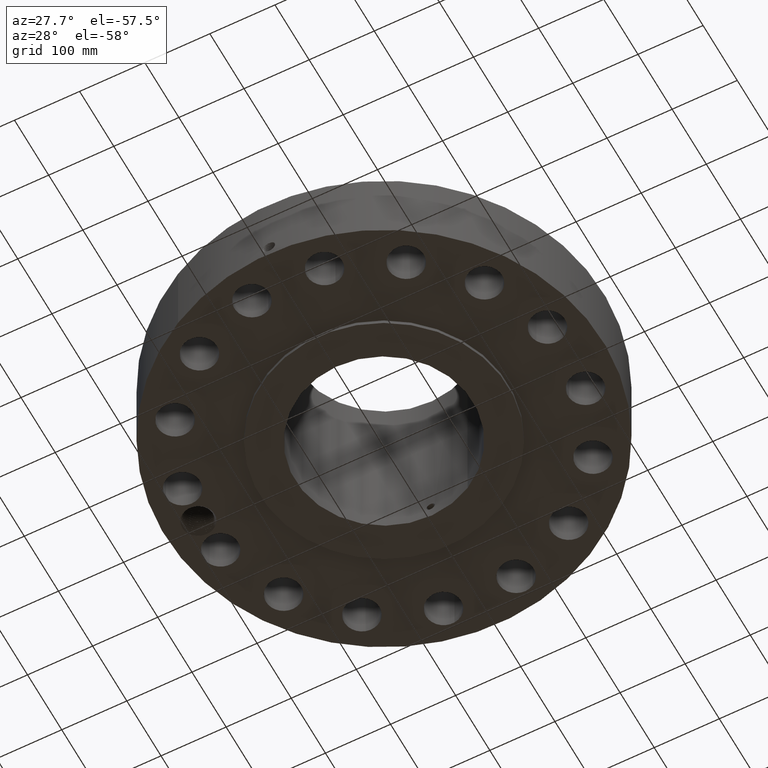
[diagram: clean part render]
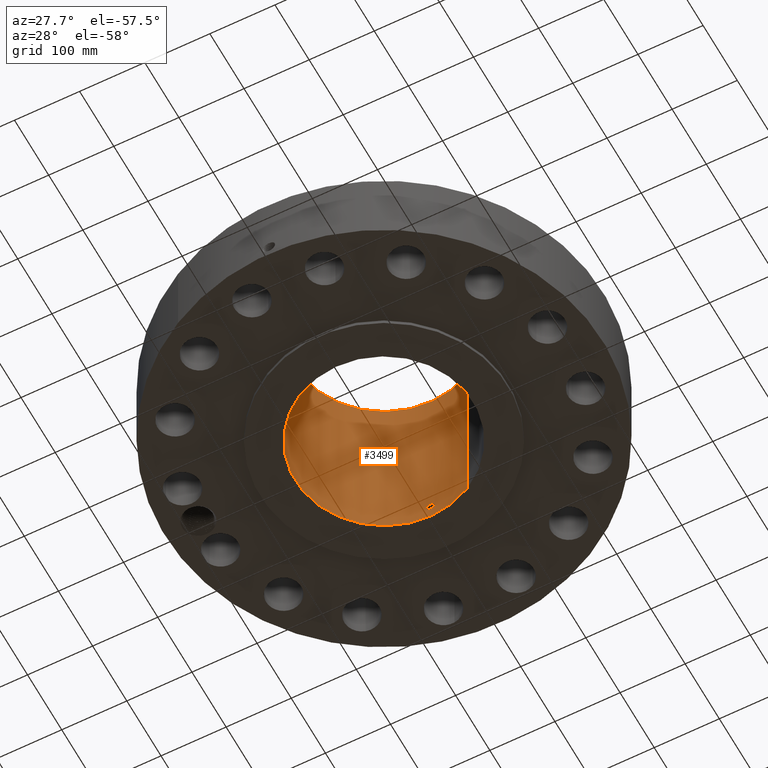
[diagram: same view with one face highlighted and labeled with its STEP entity id]
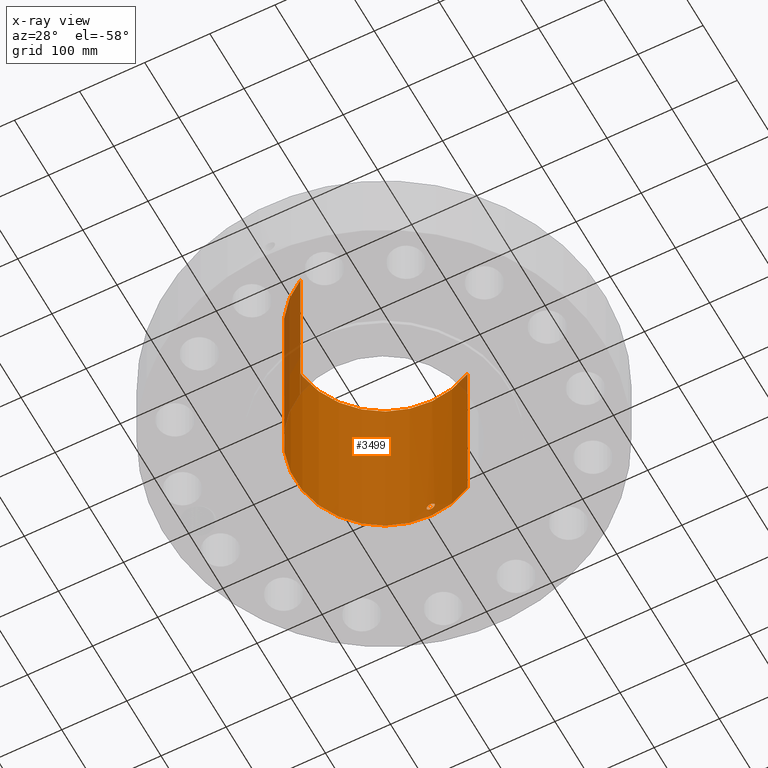
[diagram: x-ray of the same camera — body ghosted, the highlighted face saturated]
A machine part, auxiliary view. The second image highlights one B-rep face of the part: STEP entity #3499.
The next image is the same camera in x-ray: the body ghosted, the highlighted face saturated — about 7% of this face is hidden behind the body in this view.
In plain terms, the highlighted cylindrical surface (partial cylindrical patch) has radius 136.525 mm, axis along (0, 0, -1).
Its self-contained STEP definition (entity closure, byte-faithful):
#2630=AXIS2_PLACEMENT_3D('Circle Axis2P3D',#2628,#2629,$) ;
#3376=AXIS2_PLACEMENT_3D('Cylinder Axis2P3D',#3373,#3374,#3375) ;
#3448=AXIS2_PLACEMENT_3D('Circle Axis2P3D',#3446,#3447,$) ;
#2623=CARTESIAN_POINT('Vertex',(2.57691227001,4.71700627018,-2.90930883933E-014)) ;
#2625=CARTESIAN_POINT('Vertex',(-2.57691227001,-4.71700627018,-2.90930883933E-014)) ;
#2628=CARTESIAN_POINT('Axis2P3D Location',(0.,0.,0.)) ;
#3373=CARTESIAN_POINT('Axis2P3D Location',(0.,0.,5.68500000002)) ;
#3382=CARTESIAN_POINT('Vertex',(2.57691227001,4.71700627018,11.37)) ;
#3384=CARTESIAN_POINT('Vertex',(-2.57691227001,-4.71700627018,11.37)) ;
#3387=CARTESIAN_POINT('Line Origine',(2.57691227001,4.71700627018,5.68500000002)) ;
#3392=CARTESIAN_POINT('Line Origine',(-2.57691227001,-4.71700627018,5.68500000002)) ;
#3446=CARTESIAN_POINT('Axis2P3D Location',(0.,0.,11.37)) ;
#3458=CARTESIAN_POINT('Control Point',(0.219395640473,5.37052051045,1.05985638466)) ;
#3459=CARTESIAN_POINT('Control Point',(0.206921684834,5.37103009448,1.08268980729)) ;
#3460=CARTESIAN_POINT('Control Point',(0.19147807443,5.3716247178,1.1038989808)) ;
#3461=CARTESIAN_POINT('Control Point',(0.173344737001,5.37225844318,1.12297077882)) ;
#3462=CARTESIAN_POINT('Control Point',(0.112133458411,5.3740914513,1.17245128576)) ;
#3463=CARTESIAN_POINT('Control Point',(0.0349764935726,5.37528235123,1.19597480753)) ;
#3464=CARTESIAN_POINT('Control Point',(-0.0195660182175,5.37537126655,1.19761228246)) ;
#3465=CARTESIAN_POINT('Control Point',(-0.12415307428,5.37406025242,1.17246700446)) ;
#3466=CARTESIAN_POINT('Control Point',(-0.203198974586,5.37134695756,1.09954893044)) ;
#3467=CARTESIAN_POINT('Control Point',(-0.232174051109,5.37001129445,1.05333021747)) ;
#3468=CARTESIAN_POINT('Control Point',(-0.255834445275,5.36891195524,0.975175509204)) ;
#3469=CARTESIAN_POINT('Control Point',(-0.248293521108,5.3692620356,0.895790868788)) ;
#3470=CARTESIAN_POINT('Control Point',(-0.242059489171,5.36955569445,0.869211169588)) ;
#3471=CARTESIAN_POINT('Control Point',(-0.232322077127,5.36999244174,0.843805298931)) ;
#3472=CARTESIAN_POINT('Control Point',(-0.219395640473,5.37052051045,0.820143615352)) ;
#3473=CARTESIAN_POINT('Vertex',(0.219395640473,5.37052051045,1.05985638466)) ;
#3475=CARTESIAN_POINT('Vertex',(-0.219395640473,5.37052051045,0.820143615352)) ;
#3479=CARTESIAN_POINT('Control Point',(-0.219395640473,5.37052051045,0.820143615352)) ;
#3480=CARTESIAN_POINT('Control Point',(-0.206921684841,5.37103009448,0.797310192726)) ;
#3481=CARTESIAN_POINT('Control Point',(-0.191478074447,5.3716247178,0.776101019232)) ;
#3482=CARTESIAN_POINT('Control Point',(-0.17334473698,5.37225844318,0.75702922117)) ;
#3483=CARTESIAN_POINT('Control Point',(-0.112133458414,5.3740914513,0.707548714259)) ;
#3484=CARTESIAN_POINT('Control Point',(-0.0349764936126,5.37528235123,0.684025192491)) ;
#3485=CARTESIAN_POINT('Control Point',(0.0195660182514,5.37537126655,0.682387717558)) ;
#3486=CARTESIAN_POINT('Control Point',(0.124153074285,5.37406025242,0.707532995559)) ;
#3487=CARTESIAN_POINT('Control Point',(0.203198974575,5.37134695756,0.780451069554)) ;
#3488=CARTESIAN_POINT('Control Point',(0.23217405111,5.37001129445,0.82666978255)) ;
#3489=CARTESIAN_POINT('Control Point',(0.255834445275,5.36891195524,0.904824490806)) ;
#3490=CARTESIAN_POINT('Control Point',(0.248293521109,5.3692620356,0.984209131218)) ;
#3491=CARTESIAN_POINT('Control Point',(0.242059489171,5.36955569445,1.01078883042)) ;
#3492=CARTESIAN_POINT('Control Point',(0.232322077127,5.36999244174,1.03619470108)) ;
#3493=CARTESIAN_POINT('Control Point',(0.219395640473,5.37052051045,1.05985638466)) ;
#2629=DIRECTION('Axis2P3D Direction',(0.,0.,-0.0393700787402)) ;
#3374=DIRECTION('Axis2P3D Direction',(0.,0.,-0.0393700787402)) ;
#3375=DIRECTION('Axis2P3D XDirection',(-0.0188750212049,-0.0345504945626,0.)) ;
#3388=DIRECTION('Vector Direction',(0.,0.,-0.0393700787402)) ;
#3393=DIRECTION('Vector Direction',(0.,0.,-0.0393700787402)) ;
#3447=DIRECTION('Axis2P3D Direction',(0.,0.,-0.0393700787402)) ;
#3389=VECTOR('Line Direction',#3388,0.0393700787402) ;
#3394=VECTOR('Line Direction',#3393,0.0393700787402) ;
#3452=ORIENTED_EDGE('',*,*,#3450,.F.) ;
#3453=ORIENTED_EDGE('',*,*,#3396,.T.) ;
#3454=ORIENTED_EDGE('',*,*,#2632,.T.) ;
#3455=ORIENTED_EDGE('',*,*,#3391,.F.) ;
#3496=ORIENTED_EDGE('',*,*,#3477,.F.) ;
#3497=ORIENTED_EDGE('',*,*,#3494,.F.) ;
#3498=FACE_BOUND('',#3495,.T.) ;
#3499=ADVANCED_FACE('PartBody',(#3456,#3498),#3377,.F.) ;
#3457=B_SPLINE_CURVE_WITH_KNOTS('',5,(#3458,#3459,#3460,#3461,#3462,#3463,#3464,#3465,#3466,#3467,#3468,#3469,#3470,#3471,#3472),.UNSPECIFIED.,.F.,.U.,(6,3,3,3,6),(0.,4.67396039904,14.0222464059,23.3722421934,28.2157461117),.UNSPECIFIED.) ;
#3478=B_SPLINE_CURVE_WITH_KNOTS('',5,(#3479,#3480,#3481,#3482,#3483,#3484,#3485,#3486,#3487,#3488,#3489,#3490,#3491,#3492,#3493),.UNSPECIFIED.,.F.,.U.,(6,3,3,3,6),(0.,4.67396039638,14.0222463999,23.3722421864,28.2157461048),.UNSPECIFIED.) ;
#2631=CIRCLE('generated circle',#2630,5.37500000002) ;
#3449=CIRCLE('generated circle',#3448,5.37500000002) ;
#3377=CYLINDRICAL_SURFACE('generated cylinder',#3376,5.37500000002) ;
#2632=EDGE_CURVE('',#2626,#2624,#2631,.T.) ;
#3391=EDGE_CURVE('',#3383,#2624,#3390,.T.) ;
#3396=EDGE_CURVE('',#3385,#2626,#3395,.T.) ;
#3450=EDGE_CURVE('',#3385,#3383,#3449,.T.) ;
#3477=EDGE_CURVE('',#3474,#3476,#3457,.T.) ;
#3494=EDGE_CURVE('',#3476,#3474,#3478,.T.) ;
#3451=EDGE_LOOP('',(#3452,#3453,#3454,#3455)) ;
#3495=EDGE_LOOP('',(#3496,#3497)) ;
#3456=FACE_OUTER_BOUND('',#3451,.T.) ;
#3390=LINE('Line',#3387,#3389) ;
#3395=LINE('Line',#3392,#3394) ;
#2624=VERTEX_POINT('',#2623) ;
#2626=VERTEX_POINT('',#2625) ;
#3383=VERTEX_POINT('',#3382) ;
#3385=VERTEX_POINT('',#3384) ;
#3474=VERTEX_POINT('',#3473) ;
#3476=VERTEX_POINT('',#3475) ;